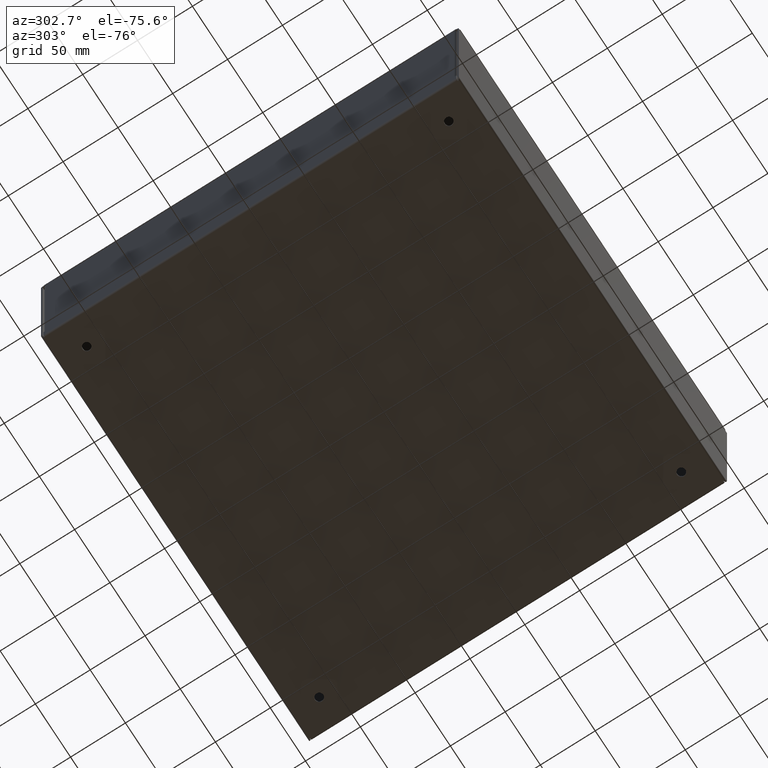
[diagram: clean part render]
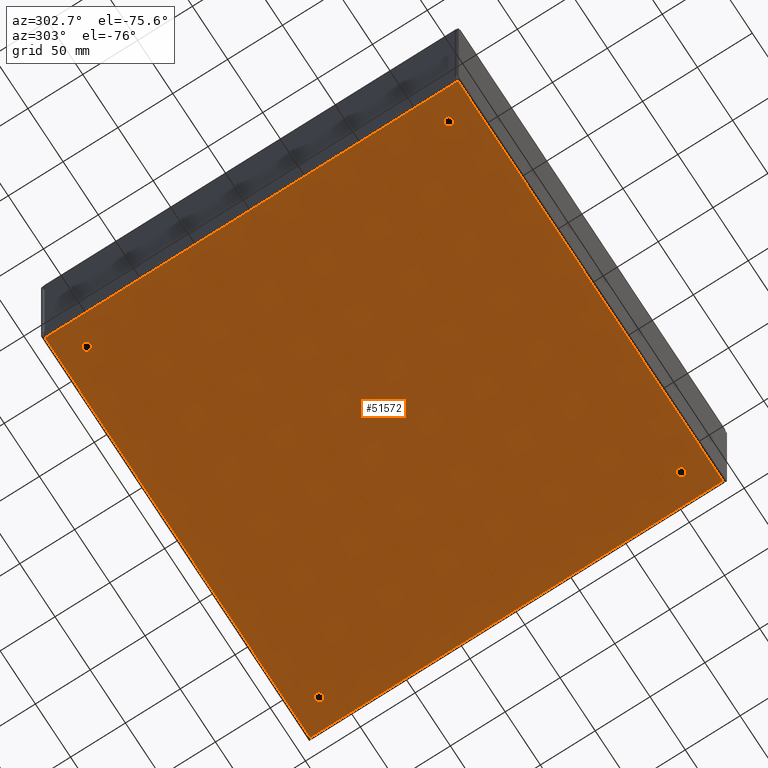
[diagram: same view with one face highlighted and labeled with its STEP entity id]
A machine part, auxiliary view. The second image highlights one B-rep face of the part: STEP entity #51572.
In plain terms, the highlighted planar face has unit normal (0, 0, 1).
Its self-contained STEP definition (entity closure, byte-faithful):
#4202=FACE_BOUND('',#9632,.T.);
#4203=FACE_BOUND('',#9633,.T.);
#4204=FACE_BOUND('',#9634,.T.);
#4205=FACE_BOUND('',#9635,.T.);
#4764=PLANE('',#54897);
#6745=FACE_OUTER_BOUND('',#9631,.T.);
#9631=EDGE_LOOP('',(#38490,#38491,#38492,#38493));
#9632=EDGE_LOOP('',(#38494));
#9633=EDGE_LOOP('',(#38495));
#9634=EDGE_LOOP('',(#38496));
#9635=EDGE_LOOP('',(#38497));
#13133=LINE('',#70818,#18574);
#13137=LINE('',#70825,#18578);
#13141=LINE('',#70831,#18582);
#13144=LINE('',#70838,#18585);
#18574=VECTOR('',#59423,0.393700787401575);
#18578=VECTOR('',#59433,0.393700787401575);
#18582=VECTOR('',#59441,0.393700787401575);
#18585=VECTOR('',#59452,0.393700787401575);
#23070=CIRCLE('',#54062,0.145);
#23072=CIRCLE('',#54065,0.145);
#23074=CIRCLE('',#54068,0.145);
#23076=CIRCLE('',#54071,0.145);
#23664=VERTEX_POINT('',#67784);
#23666=VERTEX_POINT('',#67790);
#23668=VERTEX_POINT('',#67796);
#23670=VERTEX_POINT('',#67802);
#24478=VERTEX_POINT('',#70231);
#24491=VERTEX_POINT('',#70296);
#24509=VERTEX_POINT('',#70390);
#24511=VERTEX_POINT('',#70396);
#28558=EDGE_CURVE('',#23664,#23664,#23070,.T.);
#28561=EDGE_CURVE('',#23666,#23666,#23072,.T.);
#28564=EDGE_CURVE('',#23668,#23668,#23074,.T.);
#28567=EDGE_CURVE('',#23670,#23670,#23076,.T.);
#29874=EDGE_CURVE('',#24511,#24491,#13133,.T.);
#29878=EDGE_CURVE('',#24478,#24511,#13137,.T.);
#29882=EDGE_CURVE('',#24509,#24478,#13141,.T.);
#29885=EDGE_CURVE('',#24491,#24509,#13144,.T.);
#38490=ORIENTED_EDGE('',*,*,#29874,.T.);
#38491=ORIENTED_EDGE('',*,*,#29885,.T.);
#38492=ORIENTED_EDGE('',*,*,#29882,.T.);
#38493=ORIENTED_EDGE('',*,*,#29878,.T.);
#38494=ORIENTED_EDGE('',*,*,#28558,.T.);
#38495=ORIENTED_EDGE('',*,*,#28561,.T.);
#38496=ORIENTED_EDGE('',*,*,#28564,.T.);
#38497=ORIENTED_EDGE('',*,*,#28567,.T.);
#51572=ADVANCED_FACE('',(#6745,#4202,#4203,#4204,#4205),#4764,.F.);
#54062=AXIS2_PLACEMENT_3D('',#67786,#56828,#56829);
#54065=AXIS2_PLACEMENT_3D('',#67792,#56835,#56836);
#54068=AXIS2_PLACEMENT_3D('',#67798,#56842,#56843);
#54071=AXIS2_PLACEMENT_3D('',#67804,#56849,#56850);
#54897=AXIS2_PLACEMENT_3D('',#70840,#59455,#59456);
#56828=DIRECTION('center_axis',(0.,0.,1.));
#56829=DIRECTION('ref_axis',(1.,0.,0.));
#56835=DIRECTION('center_axis',(0.,0.,1.));
#56836=DIRECTION('ref_axis',(1.,0.,0.));
#56842=DIRECTION('center_axis',(0.,0.,1.));
#56843=DIRECTION('ref_axis',(1.,0.,0.));
#56849=DIRECTION('center_axis',(0.,0.,1.));
#56850=DIRECTION('ref_axis',(1.,0.,0.));
#59423=DIRECTION('',(0.,1.,0.));
#59433=DIRECTION('',(-1.,0.,0.));
#59441=DIRECTION('',(0.,-1.,0.));
#59452=DIRECTION('',(1.,0.,0.));
#59455=DIRECTION('center_axis',(0.,0.,1.));
#59456=DIRECTION('ref_axis',(1.,0.,0.));
#67784=CARTESIAN_POINT('',(6.355,-6.5,0.));
#67786=CARTESIAN_POINT('Origin',(6.5,-6.5,0.));
#67790=CARTESIAN_POINT('',(6.355,6.5,0.));
#67792=CARTESIAN_POINT('Origin',(6.5,6.5,0.));
#67796=CARTESIAN_POINT('',(-6.645,6.5,0.));
#67798=CARTESIAN_POINT('Origin',(-6.5,6.5,0.));
#67802=CARTESIAN_POINT('',(-6.645,-6.5,0.));
#67804=CARTESIAN_POINT('Origin',(-6.5,-6.5,0.));
#70231=CARTESIAN_POINT('',(7.414,-7.414,0.));
#70296=CARTESIAN_POINT('',(-7.414,7.414,0.));
#70390=CARTESIAN_POINT('',(7.414,7.414,0.));
#70396=CARTESIAN_POINT('',(-7.414,-7.414,0.));
#70818=CARTESIAN_POINT('',(-7.414,3.707,0.));
#70825=CARTESIAN_POINT('',(-3.75,-7.414,0.));
#70831=CARTESIAN_POINT('',(7.414,-3.707,0.));
#70838=CARTESIAN_POINT('',(3.75,7.414,0.));
#70840=CARTESIAN_POINT('Origin',(0.,0.,0.));